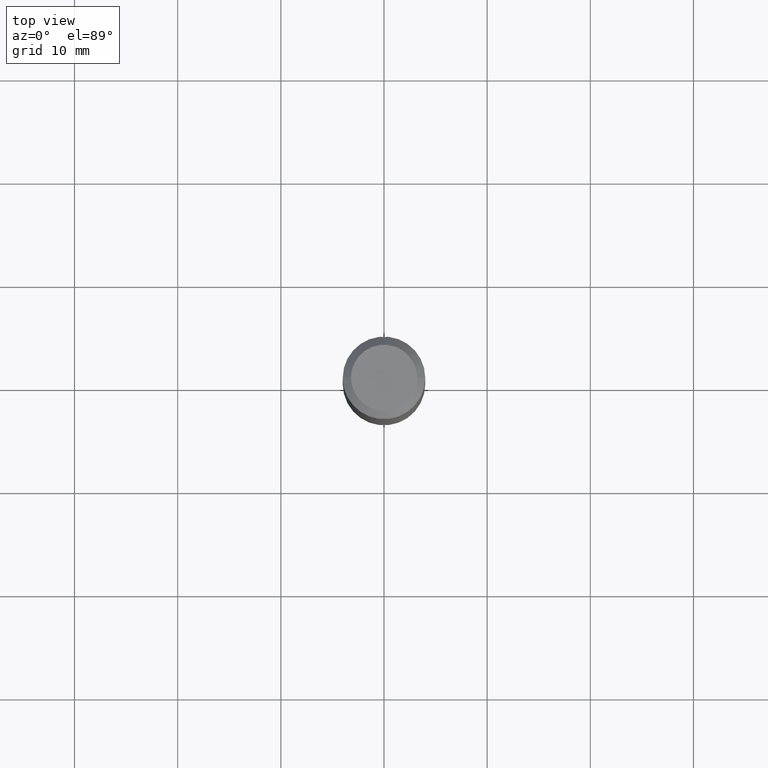
[diagram: clean part render]
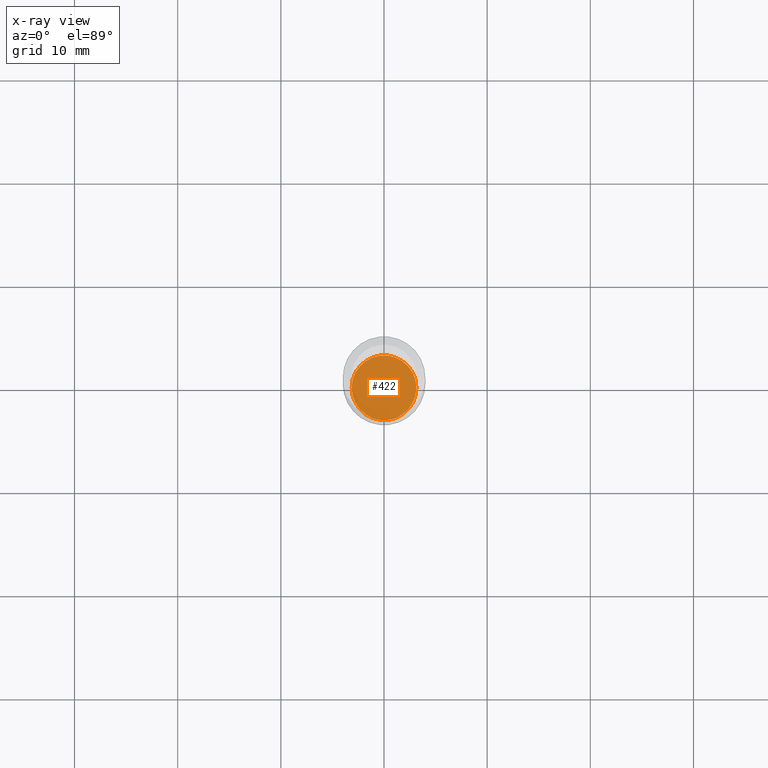
[diagram: x-ray — body ghosted, one internal face saturated and labeled with its STEP entity id]
A machine part, top view, then the same camera in x-ray: the body is ghosted and one INTERNAL B-rep face — a face not visible from any outside direction — is saturated and labeled: STEP entity #422.
In plain terms, the highlighted planar face has unit normal (-0, 0, 1).
Its self-contained STEP definition (entity closure, byte-faithful):
#12 = CIRCLE ( 'NONE', #47, 0.1234999999999999987 ) ;
#27 = PLANE ( 'NONE',  #91 ) ;
#47 = AXIS2_PLACEMENT_3D ( 'NONE', #451, #357, #252 ) ;
#91 = AXIS2_PLACEMENT_3D ( 'NONE', #334, #187, #491 ) ;
#101 = AXIS2_PLACEMENT_3D ( 'NONE', #428, #471, #151 ) ;
#151 = DIRECTION ( 'NONE',  ( 1.000000000000000000, -6.982962677686265922E-15, 0.000000000000000000 ) ) ;
#158 = VERTEX_POINT ( 'NONE', #359 ) ;
#179 = FACE_OUTER_BOUND ( 'NONE', #414, .T. ) ;
#187 = DIRECTION ( 'NONE',  ( -2.438088387897960049E-29, 3.491481338843145188E-15, 1.000000000000000000 ) ) ;
#226 = ORIENTED_EDGE ( 'NONE', *, *, #240, .F. ) ;
#240 = EDGE_CURVE ( 'NONE', #158, #432, #12, .T. ) ;
#252 = DIRECTION ( 'NONE',  ( 1.000000000000000000, -6.982962677686265922E-15, 0.000000000000000000 ) ) ;
#334 = CARTESIAN_POINT ( 'NONE',  ( 5.448259953299865383E-29, -7.778671274808644046E-15, -2.227899999999999991 ) ) ;
#357 = DIRECTION ( 'NONE',  ( -2.445468806185136597E-29, 3.491481338843145583E-15, 1.000000000000000000 ) ) ;
#359 = CARTESIAN_POINT ( 'NONE',  ( 0.1234999999999999987, -8.641067165502898364E-15, -2.227899999999999991 ) ) ;
#375 = CARTESIAN_POINT ( 'NONE',  ( -0.1234999999999999987, -6.898501768970810308E-15, -2.227899999999999991 ) ) ;
#382 = ORIENTED_EDGE ( 'NONE', *, *, #477, .F. ) ;
#410 = CIRCLE ( 'NONE', #101, 0.1234999999999999987 ) ;
#414 = EDGE_LOOP ( 'NONE', ( #226, #382 ) ) ;
#422 = ADVANCED_FACE ( 'NONE', ( #179 ), #27, .F. ) ;
#428 = CARTESIAN_POINT ( 'NONE',  ( 5.448259953299865383E-29, -7.778671274808644046E-15, -2.227899999999999991 ) ) ;
#432 = VERTEX_POINT ( 'NONE', #375 ) ;
#451 = CARTESIAN_POINT ( 'NONE',  ( 5.448259953299865383E-29, -7.778671274808644046E-15, -2.227899999999999991 ) ) ;
#471 = DIRECTION ( 'NONE',  ( -2.445468806185136597E-29, 3.491481338843145583E-15, 1.000000000000000000 ) ) ;
#477 = EDGE_CURVE ( 'NONE', #432, #158, #410, .T. ) ;
#491 = DIRECTION ( 'NONE',  ( 1.000000000000000000, -6.982962677686265922E-15, 4.876176775795935793E-29 ) ) ;